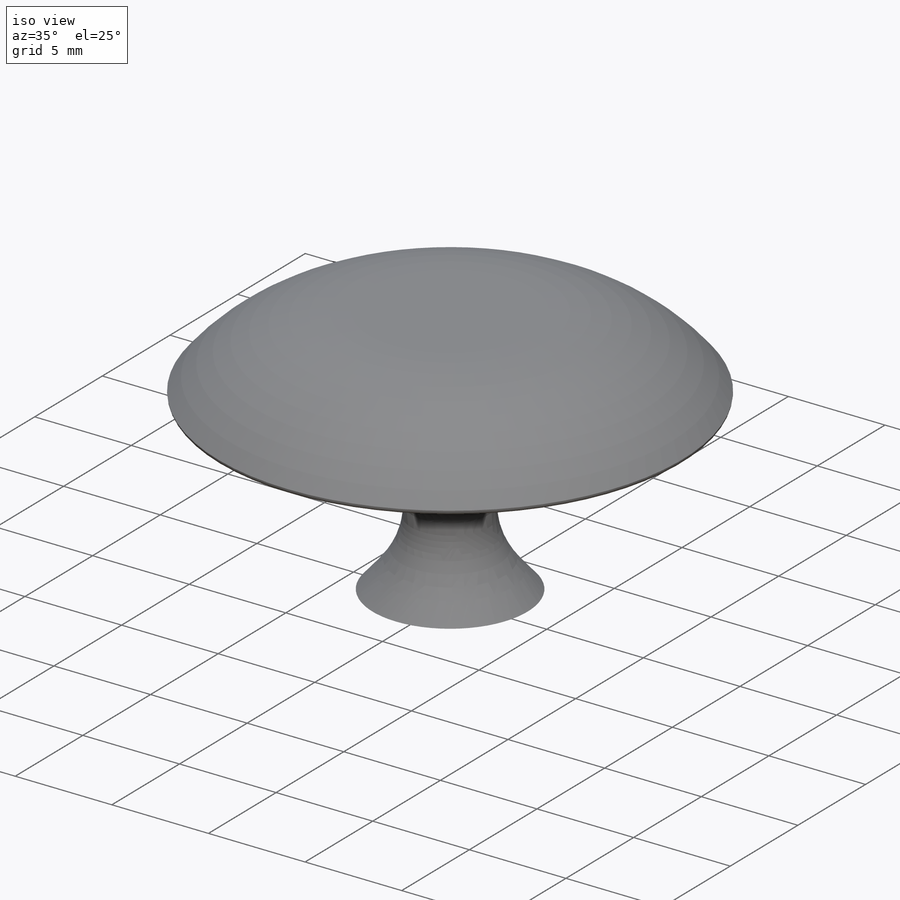
[diagram: iso view]
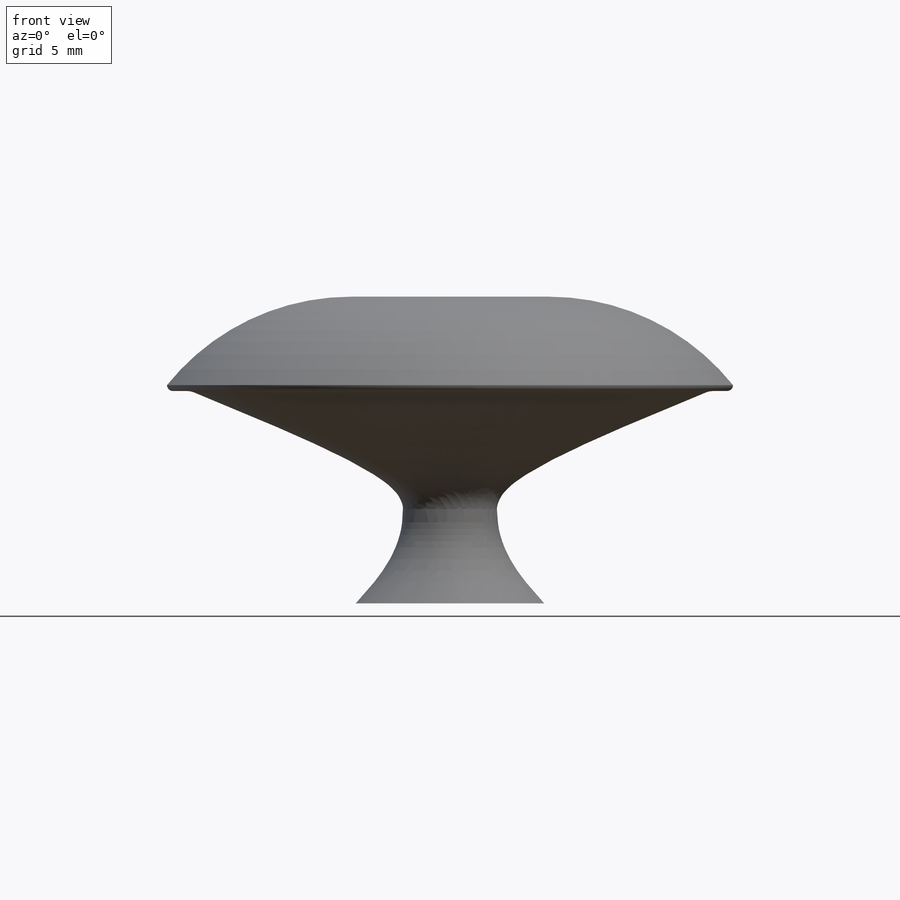
[diagram: front view]
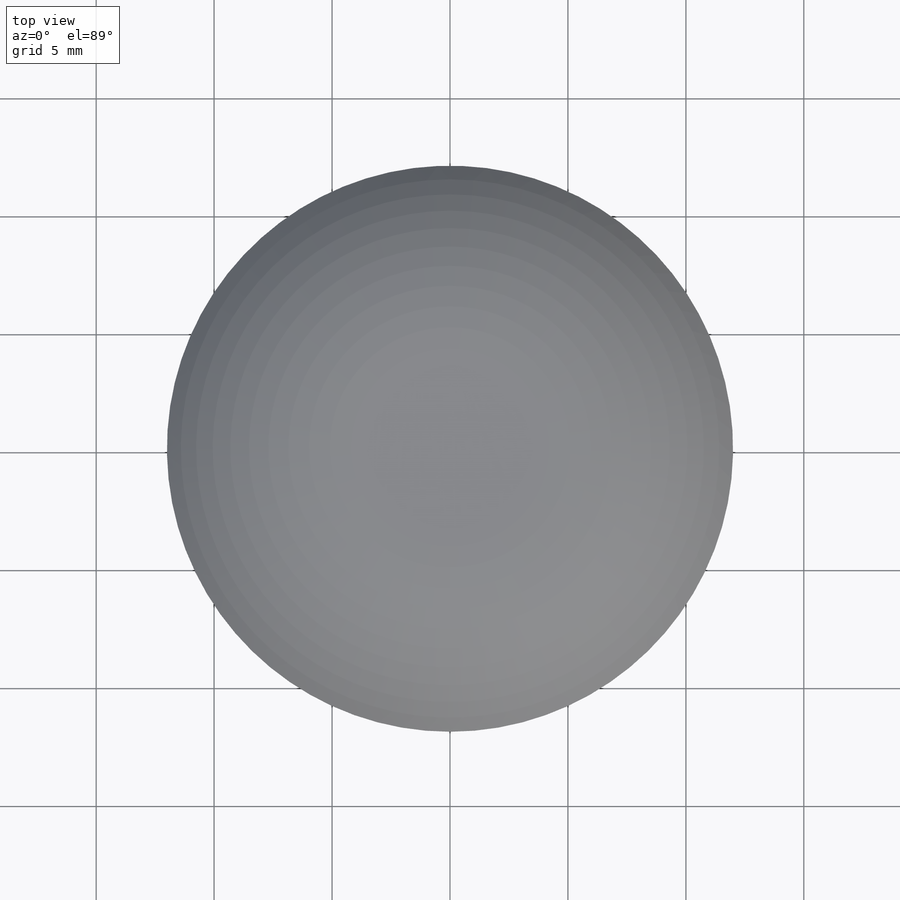
[diagram: top view]
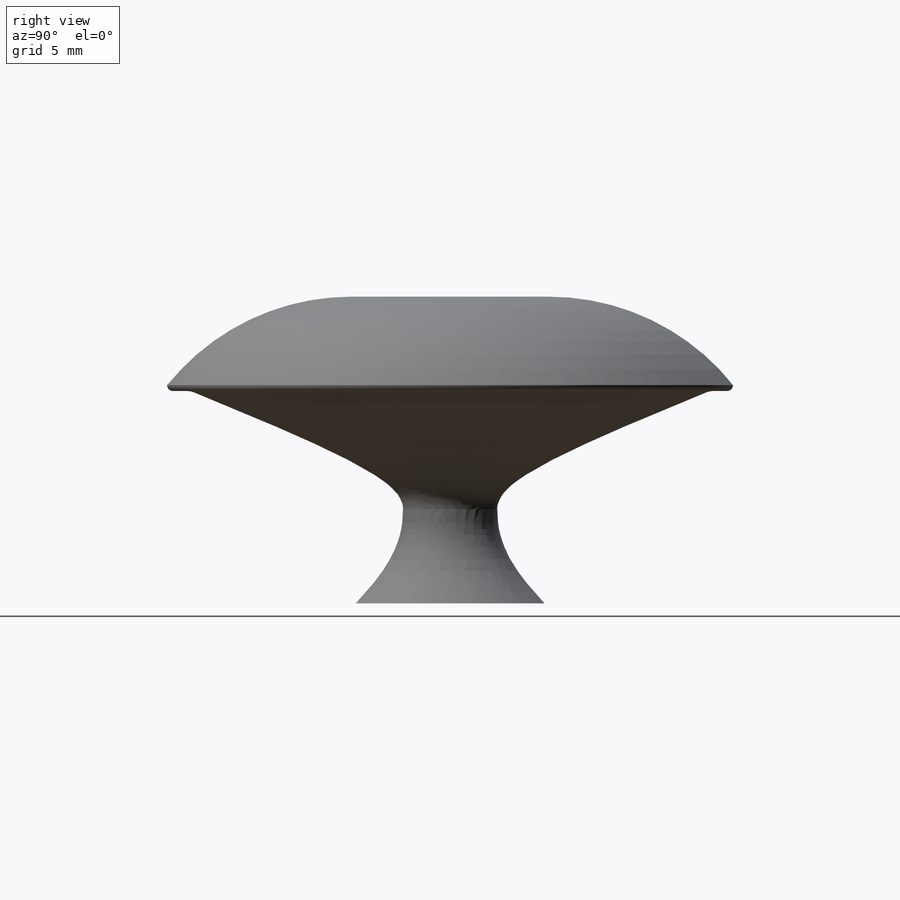
[diagram: right view]
SOLIDWORKS PART (.sldprt)
format: sldprt  version: not decoded by parser v0  size: 260,096 bytes
history: native  units: mm
features: sketch x4, plane x3, fillet x3, extrude x2, material x1 (+12 scaffold rows collapsed)
feature tree (25):
  scaffold x12  (default folders/planes/origin — collapsed)
  material  "Material <not specified>"
  sketch  "Sketch1"  dims[D1=4.0mm]
  plane  "Plane1"  Offset=5mm
  sketch  "Sketch2"  dims[D1=22.0mm]
  sketch  "Sketch3"  dims[D1=24.0mm]
  extrude  "Boss-Extrude1"  Depth=4mm
  fillet  "Fillet1"  Radius=0.75mm
  fillet  "Fillet2"  Radius=0.25mm
  plane  "Plane2"
  plane  "Plane3"  Offset=4mm
  sketch  "Sketch4"  dims[D1=~3.505539mm]
  extrude  "Loft3"  [1 undecoded]
  fillet  "Fillet3"  Radius=10mm
decode coverage: 8 of 9 modeling features carry decoded parameters
note: ~ marks probable driven/reference dimensions
note: 1 parameter value undecoded
note: suppression state not decoded; provenance and decode notes live in map.json
